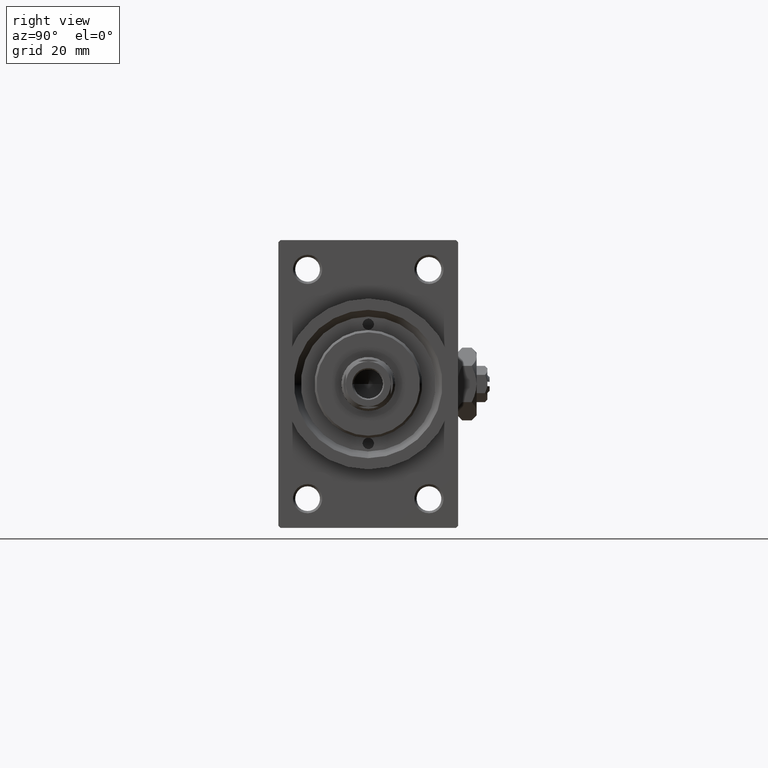
[diagram: clean part render]
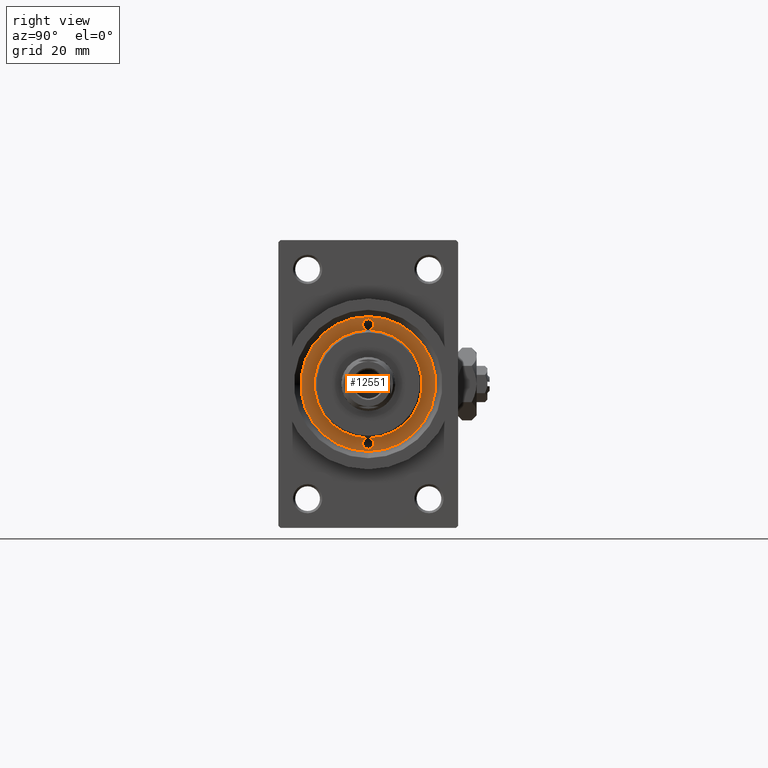
[diagram: same view with one face highlighted and labeled with its STEP entity id]
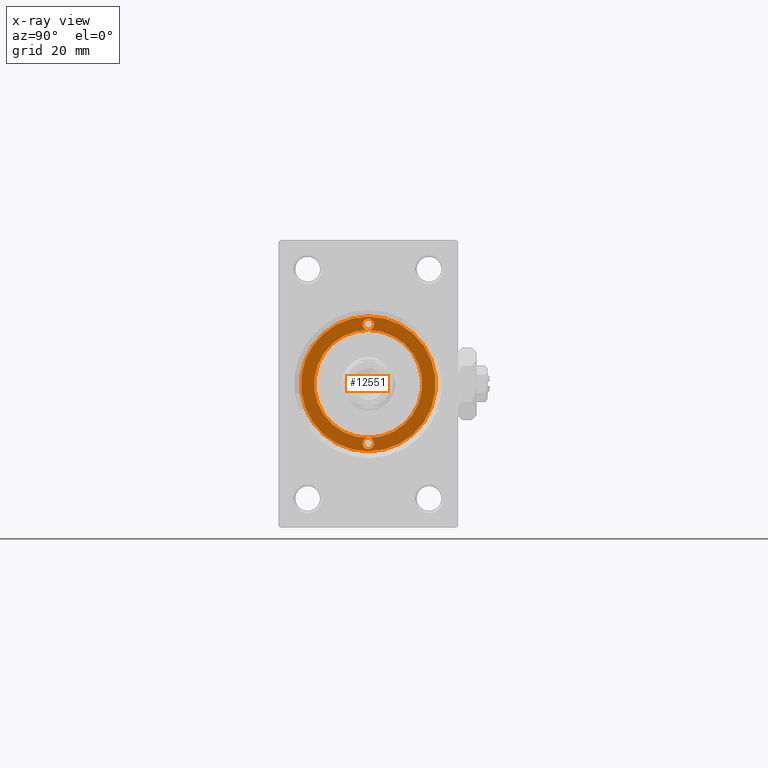
[diagram: x-ray of the same camera — body ghosted, the highlighted face saturated]
A machine part, right view. The second image highlights one B-rep face of the part: STEP entity #12551.
The next image is the same camera in x-ray: the body ghosted, the highlighted face saturated — about 0% of this face is hidden behind the body in this view.
In plain terms, the highlighted planar face has unit normal (1, -0, -0).
Its self-contained STEP definition (entity closure, byte-faithful):
#197 = CIRCLE ( 'NONE', #41558, 1.249999999999999334 ) ;
#439 = CARTESIAN_POINT ( 'NONE',  ( 13.25000000000000000, 0.000000000000000000, 43.25999999999999801 ) ) ;
#853 = DIRECTION ( 'NONE',  ( 0.000000000000000000, 0.000000000000000000, 1.000000000000000000 ) ) ;
#1586 = FACE_OUTER_BOUND ( 'NONE', #19351, .T. ) ;
#2536 = VERTEX_POINT ( 'NONE', #13689 ) ;
#3230 = CIRCLE ( 'NONE', #27077, 12.00000000000000178 ) ;
#4233 = ORIENTED_EDGE ( 'NONE', *, *, #19769, .T. ) ;
#4447 = DIRECTION ( 'NONE',  ( 0.000000000000000000, 0.000000000000000000, 1.000000000000000000 ) ) ;
#4685 = DIRECTION ( 'NONE',  ( 1.000000000000000000, 0.000000000000000000, 0.000000000000000000 ) ) ;
#5086 = FACE_BOUND ( 'NONE', #30796, .T. ) ;
#5561 = CIRCLE ( 'NONE', #46135, 1.249999999999999334 ) ;
#5828 = CIRCLE ( 'NONE', #8636, 12.00000000000000178 ) ;
#7179 = CIRCLE ( 'NONE', #31024, 1.249999999999999334 ) ;
#7635 = ORIENTED_EDGE ( 'NONE', *, *, #9477, .F. ) ;
#7639 = DIRECTION ( 'NONE',  ( -0.000000000000000000, -0.000000000000000000, 1.000000000000000000 ) ) ;
#7779 = DIRECTION ( 'NONE',  ( 1.000000000000000000, 0.000000000000000000, 0.000000000000000000 ) ) ;
#8258 = CARTESIAN_POINT ( 'NONE',  ( -13.25000000000000178, 0.000000000000000000, 43.25999999999999801 ) ) ;
#8636 = AXIS2_PLACEMENT_3D ( 'NONE', #46536, #4447, #4685 ) ;
#9477 = EDGE_CURVE ( 'NONE', #35571, #17598, #37326, .T. ) ;
#9907 = DIRECTION ( 'NONE',  ( -0.000000000000000000, -0.000000000000000000, 1.000000000000000000 ) ) ;
#10390 = CIRCLE ( 'NONE', #40599, 15.00000000000000000 ) ;
#11252 = CARTESIAN_POINT ( 'NONE',  ( 0.000000000000000000, 0.000000000000000000, 43.25999999999999801 ) ) ;
#11285 = ORIENTED_EDGE ( 'NONE', *, *, #38510, .F. ) ;
#11382 = CARTESIAN_POINT ( 'NONE',  ( 13.25000000000000000, 0.000000000000000000, 43.25999999999999801 ) ) ;
#11881 = EDGE_CURVE ( 'NONE', #39671, #44701, #10390, .T. ) ;
#12551 = ADVANCED_FACE ( 'NONE', ( #5086, #1586 ), #35710, .T. ) ;
#12727 = DIRECTION ( 'NONE',  ( -0.000000000000000000, -0.000000000000000000, 1.000000000000000000 ) ) ;
#13300 = DIRECTION ( 'NONE',  ( 1.000000000000000000, 0.000000000000000000, -0.000000000000000000 ) ) ;
#13689 = CARTESIAN_POINT ( 'NONE',  ( -12.00000000000000178, 0.000000000000000000, 43.25999999999999801 ) ) ;
#15258 = VERTEX_POINT ( 'NONE', #38041 ) ;
#15358 = DIRECTION ( 'NONE',  ( 1.000000000000000000, 0.000000000000000000, 0.000000000000000000 ) ) ;
#17192 = DIRECTION ( 'NONE',  ( 1.000000000000000000, 0.000000000000000000, 0.000000000000000000 ) ) ;
#17598 = VERTEX_POINT ( 'NONE', #30744 ) ;
#17703 = DIRECTION ( 'NONE',  ( 0.000000000000000000, 0.000000000000000000, 1.000000000000000000 ) ) ;
#18286 = CARTESIAN_POINT ( 'NONE',  ( 12.00000000000000178, 1.469576158976824144E-15, 43.25999999999999801 ) ) ;
#18521 = CARTESIAN_POINT ( 'NONE',  ( 0.000000000000000000, 0.000000000000000000, 43.25999999999999801 ) ) ;
#19245 = DIRECTION ( 'NONE',  ( 0.000000000000000000, 0.000000000000000000, 1.000000000000000000 ) ) ;
#19351 = EDGE_LOOP ( 'NONE', ( #4233, #28931 ) ) ;
#19721 = ORIENTED_EDGE ( 'NONE', *, *, #37898, .F. ) ;
#19769 = EDGE_CURVE ( 'NONE', #44701, #39671, #48154, .T. ) ;
#20038 = CARTESIAN_POINT ( 'NONE',  ( 0.000000000000000000, 0.000000000000000000, 43.25999999999999801 ) ) ;
#23027 = AXIS2_PLACEMENT_3D ( 'NONE', #439, #46026, #43965 ) ;
#23806 = ORIENTED_EDGE ( 'NONE', *, *, #38116, .F. ) ;
#24284 = AXIS2_PLACEMENT_3D ( 'NONE', #11252, #26437, #44386 ) ;
#24604 = DIRECTION ( 'NONE',  ( 1.000000000000000000, 0.000000000000000000, 0.000000000000000000 ) ) ;
#26437 = DIRECTION ( 'NONE',  ( 0.000000000000000000, 0.000000000000000000, 1.000000000000000000 ) ) ;
#27077 = AXIS2_PLACEMENT_3D ( 'NONE', #28897, #17703, #17192 ) ;
#28327 = CARTESIAN_POINT ( 'NONE',  ( -13.25000000000000178, 0.000000000000000000, 43.25999999999999801 ) ) ;
#28897 = CARTESIAN_POINT ( 'NONE',  ( 0.000000000000000000, 0.000000000000000000, 43.25999999999999801 ) ) ;
#28931 = ORIENTED_EDGE ( 'NONE', *, *, #11881, .T. ) ;
#30744 = CARTESIAN_POINT ( 'NONE',  ( 14.49999999999999822, 0.000000000000000000, 43.25999999999999801 ) ) ;
#30796 = EDGE_LOOP ( 'NONE', ( #46219, #45736, #19721, #11285, #23806, #7635 ) ) ;
#31024 = AXIS2_PLACEMENT_3D ( 'NONE', #11382, #7639, #15358 ) ;
#34311 = CARTESIAN_POINT ( 'NONE',  ( 15.00000000000000000, 1.836970198721029589E-15, 43.25999999999999801 ) ) ;
#35571 = VERTEX_POINT ( 'NONE', #18286 ) ;
#35710 = PLANE ( 'NONE',  #35854 ) ;
#35854 = AXIS2_PLACEMENT_3D ( 'NONE', #20038, #853, #13300 ) ;
#37326 = CIRCLE ( 'NONE', #23027, 1.249999999999999334 ) ;
#37898 = EDGE_CURVE ( 'NONE', #2536, #15258, #5561, .T. ) ;
#38041 = CARTESIAN_POINT ( 'NONE',  ( -14.50000000000000000, 1.530808498934191571E-16, 43.25999999999999801 ) ) ;
#38116 = EDGE_CURVE ( 'NONE', #17598, #35571, #7179, .T. ) ;
#38510 = EDGE_CURVE ( 'NONE', #35571, #2536, #3230, .T. ) ;
#39671 = VERTEX_POINT ( 'NONE', #34311 ) ;
#40599 = AXIS2_PLACEMENT_3D ( 'NONE', #18521, #19245, #7779 ) ;
#41558 = AXIS2_PLACEMENT_3D ( 'NONE', #8258, #12727, #42872 ) ;
#42872 = DIRECTION ( 'NONE',  ( 1.000000000000000000, 0.000000000000000000, 0.000000000000000000 ) ) ;
#43101 = EDGE_CURVE ( 'NONE', #15258, #2536, #197, .T. ) ;
#43965 = DIRECTION ( 'NONE',  ( 1.000000000000000000, 0.000000000000000000, 0.000000000000000000 ) ) ;
#44386 = DIRECTION ( 'NONE',  ( 1.000000000000000000, 0.000000000000000000, 0.000000000000000000 ) ) ;
#44701 = VERTEX_POINT ( 'NONE', #47417 ) ;
#45736 = ORIENTED_EDGE ( 'NONE', *, *, #43101, .F. ) ;
#46026 = DIRECTION ( 'NONE',  ( -0.000000000000000000, -0.000000000000000000, 1.000000000000000000 ) ) ;
#46135 = AXIS2_PLACEMENT_3D ( 'NONE', #28327, #9907, #24604 ) ;
#46219 = ORIENTED_EDGE ( 'NONE', *, *, #46987, .F. ) ;
#46536 = CARTESIAN_POINT ( 'NONE',  ( 0.000000000000000000, 0.000000000000000000, 43.25999999999999801 ) ) ;
#46987 = EDGE_CURVE ( 'NONE', #2536, #35571, #5828, .T. ) ;
#47417 = CARTESIAN_POINT ( 'NONE',  ( -15.00000000000000000, 0.000000000000000000, 43.25999999999999801 ) ) ;
#48154 = CIRCLE ( 'NONE', #24284, 15.00000000000000000 ) ;